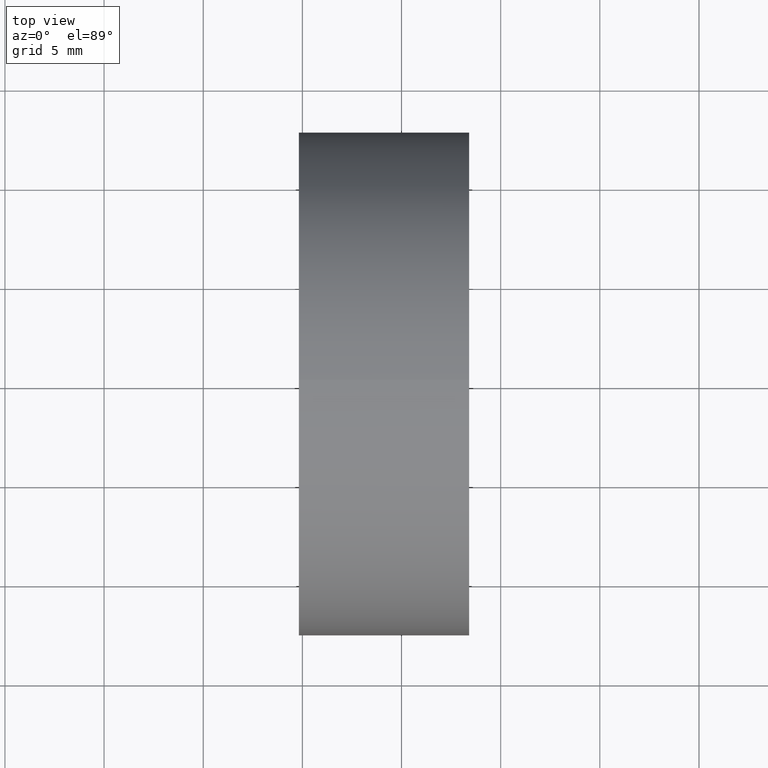
[diagram: clean part render]
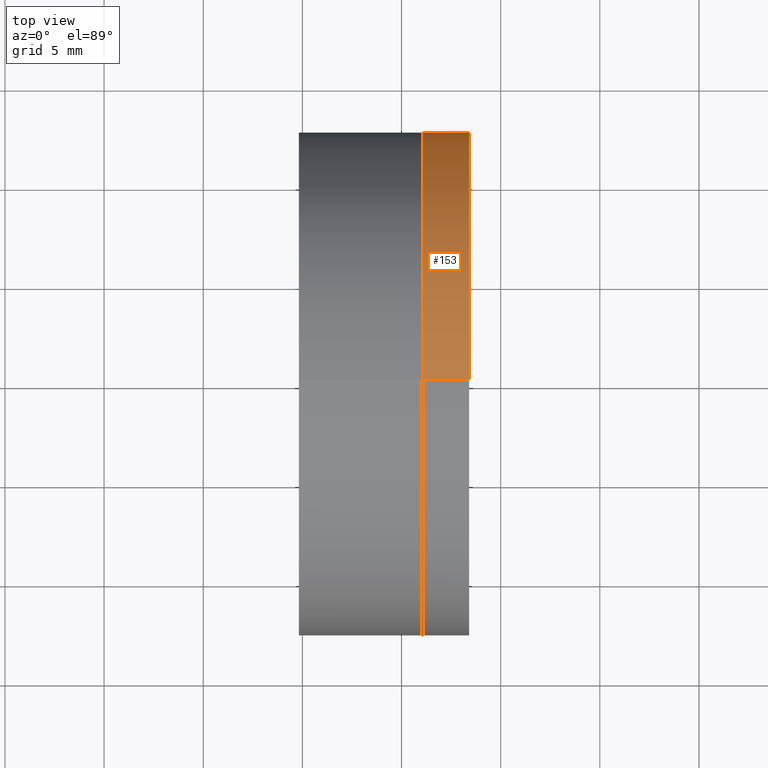
[diagram: same view with one face highlighted and labeled with its STEP entity id]
A machine part, top view. The second image highlights one B-rep face of the part: STEP entity #153.
In plain terms, the highlighted cylindrical surface (partial cylindrical patch) has radius 12.7 mm, axis along (-1, -0, -0).
Its self-contained STEP definition (entity closure, byte-faithful):
#5 = DIRECTION ( 'NONE',  ( -1.000000000000000000, -0.0000000000000000000, -0.0000000000000000000 ) ) ;
#7 = VERTEX_POINT ( 'NONE', #134 ) ;
#17 = CIRCLE ( 'NONE', #82, 12.69999999999999900 ) ;
#23 = CARTESIAN_POINT ( 'NONE',  ( 254.8214953252485500, 0.0000000000000000000, 12.69999999999999900 ) ) ;
#31 = VERTEX_POINT ( 'NONE', #57 ) ;
#52 = EDGE_CURVE ( 'NONE', #31, #326, #106, .T. ) ;
#57 = CARTESIAN_POINT ( 'NONE',  ( 263.4119260896008000, 0.0000000000000000000, 12.69999999999999900 ) ) ;
#61 = CARTESIAN_POINT ( 'NONE',  ( 261.0615380360216000, -1.555301434917140400E-015, 12.70000000000001700 ) ) ;
#62 = CARTESIAN_POINT ( 'NONE',  ( 254.8214953252485500, 1.555301434917138400E-015, -12.69999999999999900 ) ) ;
#66 = EDGE_CURVE ( 'NONE', #31, #111, #17, .T. ) ;
#72 = ORIENTED_EDGE ( 'NONE', *, *, #66, .T. ) ;
#82 = AXIS2_PLACEMENT_3D ( 'NONE', #272, #217, #243 ) ;
#85 = FACE_OUTER_BOUND ( 'NONE', #251, .T. ) ;
#94 = ORIENTED_EDGE ( 'NONE', *, *, #222, .F. ) ;
#95 = VECTOR ( 'NONE', #289, 1000.000000000000000 ) ;
#103 = AXIS2_PLACEMENT_3D ( 'NONE', #299, #190, #248 ) ;
#105 = CARTESIAN_POINT ( 'NONE',  ( 263.4119260896008000, 1.555301434917138400E-015, -12.69999999999999900 ) ) ;
#106 = LINE ( 'NONE', #23, #95 ) ;
#111 = VERTEX_POINT ( 'NONE', #105 ) ;
#114 = CYLINDRICAL_SURFACE ( 'NONE', #103, 12.69999999999999900 ) ;
#134 = CARTESIAN_POINT ( 'NONE',  ( 261.0615380360216000, 0.0000000000000000000, -12.70000000000001700 ) ) ;
#153 = ADVANCED_FACE ( 'NONE', ( #85 ), #114, .T. ) ;
#164 = AXIS2_PLACEMENT_3D ( 'NONE', #202, #5, #320 ) ;
#190 = DIRECTION ( 'NONE',  ( -1.000000000000000000, -0.0000000000000000000, -0.0000000000000000000 ) ) ;
#202 = CARTESIAN_POINT ( 'NONE',  ( 261.0615380360216000, 0.0000000000000000000, 0.0000000000000000000 ) ) ;
#217 = DIRECTION ( 'NONE',  ( -1.000000000000000000, -0.0000000000000000000, -0.0000000000000000000 ) ) ;
#222 = EDGE_CURVE ( 'NONE', #326, #7, #259, .T. ) ;
#228 = ORIENTED_EDGE ( 'NONE', *, *, #295, .T. ) ;
#243 = DIRECTION ( 'NONE',  ( 0.0000000000000000000, 0.0000000000000000000, 1.000000000000000000 ) ) ;
#248 = DIRECTION ( 'NONE',  ( 0.0000000000000000000, 0.0000000000000000000, 1.000000000000000000 ) ) ;
#251 = EDGE_LOOP ( 'NONE', ( #72, #228, #94, #330 ) ) ;
#256 = LINE ( 'NONE', #62, #267 ) ;
#259 = CIRCLE ( 'NONE', #164, 12.69999999999999900 ) ;
#267 = VECTOR ( 'NONE', #280, 1000.000000000000000 ) ;
#272 = CARTESIAN_POINT ( 'NONE',  ( 263.4119260896008000, 0.0000000000000000000, 0.0000000000000000000 ) ) ;
#280 = DIRECTION ( 'NONE',  ( -1.000000000000000000, -0.0000000000000000000, -0.0000000000000000000 ) ) ;
#289 = DIRECTION ( 'NONE',  ( -1.000000000000000000, -0.0000000000000000000, -0.0000000000000000000 ) ) ;
#295 = EDGE_CURVE ( 'NONE', #111, #7, #256, .T. ) ;
#299 = CARTESIAN_POINT ( 'NONE',  ( 254.8214953252485500, 0.0000000000000000000, 0.0000000000000000000 ) ) ;
#320 = DIRECTION ( 'NONE',  ( 0.0000000000000000000, 0.0000000000000000000, 1.000000000000000000 ) ) ;
#326 = VERTEX_POINT ( 'NONE', #61 ) ;
#330 = ORIENTED_EDGE ( 'NONE', *, *, #52, .F. ) ;